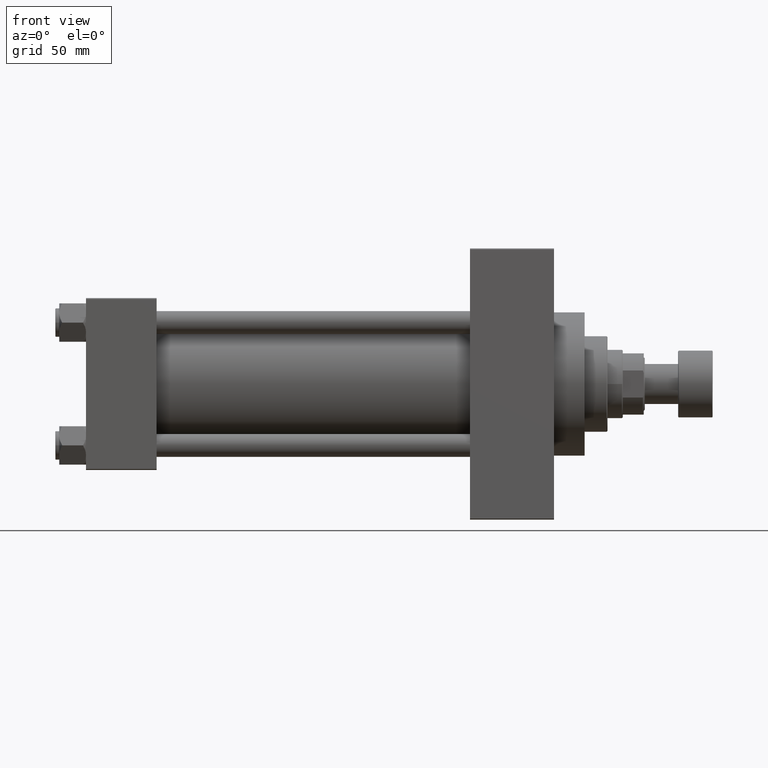
[diagram: clean part render]
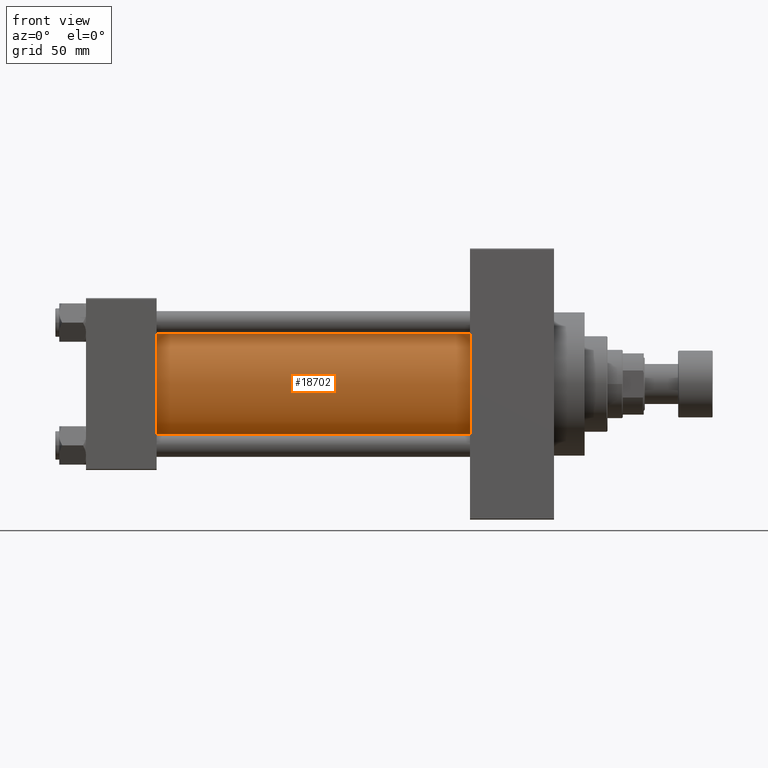
[diagram: same view with one face highlighted and labeled with its STEP entity id]
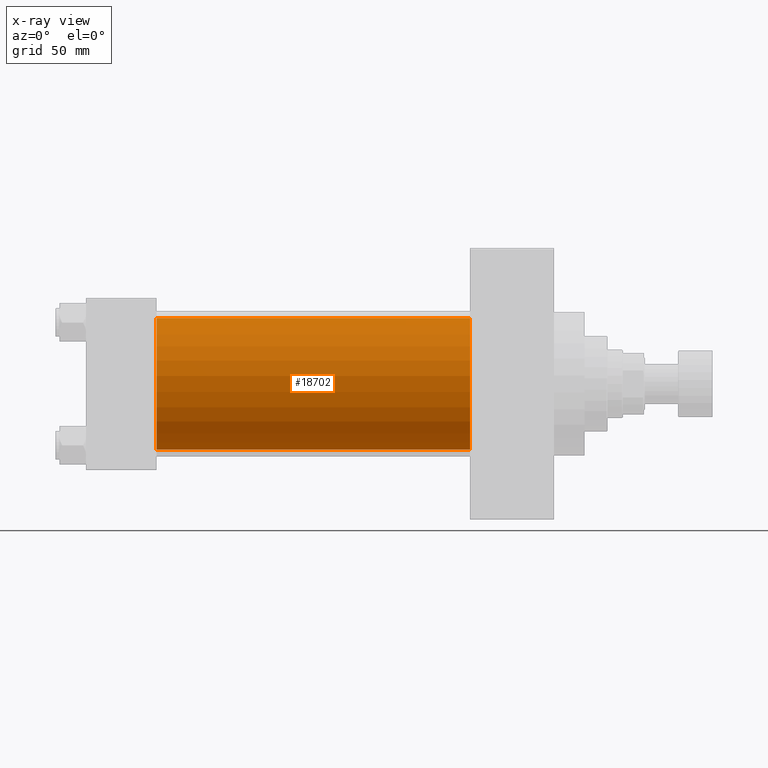
[diagram: x-ray of the same camera — body ghosted, the highlighted face saturated]
A machine part, front view. The second image highlights one B-rep face of the part: STEP entity #18702.
The next image is the same camera in x-ray: the body ghosted, the highlighted face saturated — about 0% of this face is hidden behind the body in this view.
In plain terms, the highlighted cylindrical surface (partial cylindrical patch) has radius 34.5 mm, axis along (-1, -0, -0).
Its self-contained STEP definition (entity closure, byte-faithful):
#1404 = CIRCLE ( 'NONE', #31571, 34.50000000000000000 ) ;
#2493 = EDGE_CURVE ( 'NONE', #34363, #33171, #1404, .T. ) ;
#3491 = VERTEX_POINT ( 'NONE', #39918 ) ;
#4002 = DIRECTION ( 'NONE',  ( -1.000000000000000000, -0.000000000000000000, -0.000000000000000000 ) ) ;
#5170 = CARTESIAN_POINT ( 'NONE',  ( 37.00000000000000711, -2.602085213965210642E-15, 0.000000000000000000 ) ) ;
#5419 = DIRECTION ( 'NONE',  ( 1.000000000000000000, -0.000000000000000000, 0.000000000000000000 ) ) ;
#6033 = FACE_OUTER_BOUND ( 'NONE', #6486, .T. ) ;
#6486 = EDGE_LOOP ( 'NONE', ( #29544, #43294, #14942, #26763 ) ) ;
#8209 = DIRECTION ( 'NONE',  ( 1.000000000000000000, 0.000000000000000000, 0.000000000000000000 ) ) ;
#8539 = EDGE_CURVE ( 'NONE', #33171, #3491, #25131, .T. ) ;
#12414 = VECTOR ( 'NONE', #18584, 1000.000000000000000 ) ;
#14630 = AXIS2_PLACEMENT_3D ( 'NONE', #21300, #35589, #21061 ) ;
#14942 = ORIENTED_EDGE ( 'NONE', *, *, #22748, .T. ) ;
#18077 = CIRCLE ( 'NONE', #33496, 34.50000000000000000 ) ;
#18584 = DIRECTION ( 'NONE',  ( -1.000000000000000000, -0.000000000000000000, -0.000000000000000000 ) ) ;
#18702 = ADVANCED_FACE ( 'NONE', ( #6033 ), #20817, .T. ) ;
#18727 = CARTESIAN_POINT ( 'NONE',  ( 201.0000000000000000, 1.622946243093158675E-15, -34.50000000000000000 ) ) ;
#19363 = VECTOR ( 'NONE', #4002, 1000.000000000000000 ) ;
#19479 = CARTESIAN_POINT ( 'NONE',  ( 201.0000000000000000, -2.602085213965210642E-15, 34.50000000000000000 ) ) ;
#20817 = CYLINDRICAL_SURFACE ( 'NONE', #14630, 34.50000000000000000 ) ;
#21061 = DIRECTION ( 'NONE',  ( 0.000000000000000000, 0.000000000000000000, 1.000000000000000000 ) ) ;
#21300 = CARTESIAN_POINT ( 'NONE',  ( 201.0000000000000000, -2.602085213965210642E-15, 0.000000000000000000 ) ) ;
#22748 = EDGE_CURVE ( 'NONE', #34363, #34621, #26280, .T. ) ;
#22973 = DIRECTION ( 'NONE',  ( 0.000000000000000000, 0.000000000000000000, -1.000000000000000000 ) ) ;
#25131 = LINE ( 'NONE', #40382, #12414 ) ;
#26280 = LINE ( 'NONE', #47859, #19363 ) ;
#26763 = ORIENTED_EDGE ( 'NONE', *, *, #32937, .T. ) ;
#27707 = DIRECTION ( 'NONE',  ( 0.000000000000000000, 0.000000000000000000, 1.000000000000000000 ) ) ;
#29544 = ORIENTED_EDGE ( 'NONE', *, *, #8539, .F. ) ;
#31571 = AXIS2_PLACEMENT_3D ( 'NONE', #45006, #8209, #22973 ) ;
#32937 = EDGE_CURVE ( 'NONE', #34621, #3491, #18077, .T. ) ;
#33171 = VERTEX_POINT ( 'NONE', #18727 ) ;
#33496 = AXIS2_PLACEMENT_3D ( 'NONE', #5170, #5419, #27707 ) ;
#34363 = VERTEX_POINT ( 'NONE', #19479 ) ;
#34621 = VERTEX_POINT ( 'NONE', #39572 ) ;
#35589 = DIRECTION ( 'NONE',  ( -1.000000000000000000, -0.000000000000000000, -0.000000000000000000 ) ) ;
#39572 = CARTESIAN_POINT ( 'NONE',  ( 37.00000000000000711, -2.602085213965210642E-15, 34.50000000000000000 ) ) ;
#39918 = CARTESIAN_POINT ( 'NONE',  ( 37.00000000000000711, 1.622946243093158675E-15, -34.50000000000000000 ) ) ;
#40382 = CARTESIAN_POINT ( 'NONE',  ( 201.0000000000000000, 1.622946243093158675E-15, -34.50000000000000000 ) ) ;
#43294 = ORIENTED_EDGE ( 'NONE', *, *, #2493, .F. ) ;
#45006 = CARTESIAN_POINT ( 'NONE',  ( 201.0000000000000000, -2.602085213965210642E-15, 0.000000000000000000 ) ) ;
#47859 = CARTESIAN_POINT ( 'NONE',  ( 201.0000000000000000, -2.602085213965210642E-15, 34.50000000000000000 ) ) ;